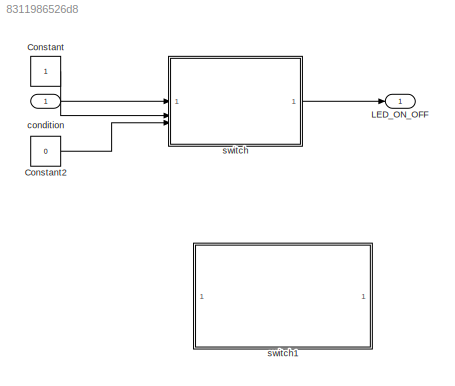
MODEL slx_8311986526d8
KIND model
CONFIG AbsTol = auto
CONFIG EnableMultiTasking = off
CONFIG FixedStep = 0.001
CONFIG MaxStep = auto
CONFIG MinStep = auto
CONFIG RelTol = 1e-3
CONFIG SampleTimeConstraint = Unconstrained
CONFIG SolverName = FixedStepDiscrete
CONFIG StartTime = 0.0
CONFIG StopTime = 20
BLOCK [Constant] Constant
BLOCK [Constant] Constant2
  Value = 0
BLOCK [Outport] LED_ON_OFF
BLOCK [Inport] condition
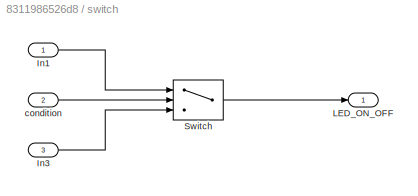
BLOCK [SubSystem] switch
  TreatAsAtomicUnit = on
BLOCK [Inport] switch/In1
BLOCK [Inport] switch/In3
  Port = 3
BLOCK [Outport] switch/LED_ON_OFF
BLOCK [Switch] switch/Switch
  Criteria = u2 > Threshold
  InputSameDT = off
  SaturateOnIntegerOverflow = off
BLOCK [Inport] switch/condition
  Port = 2
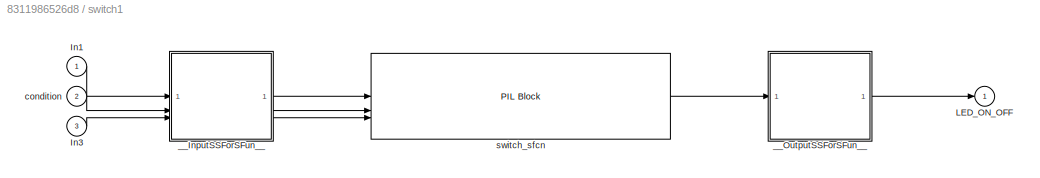
BLOCK [SubSystem] switch1
  Commented = on
  DialogController = pil_create_dialog
  LoadFcn = try\n   if ~strcmp(rtw.pil.getPILVersion, '9.13 (R2022b)_15')\n      set_param(gcb, 'DialogController', '');\n      set_param(gcb, 'DialogControllerArgs', '');\n   end\ncatch e\n      set_param(gcb, 'DialogController', '');\n      set_param(gcb, 'DialogControllerArgs', '');\nend
  Tag = __SL_testing_harness_stub_
BLOCK [Inport] switch1/In1
BLOCK [Inport] switch1/In3
  Port = 3
BLOCK [Outport] switch1/LED_ON_OFF
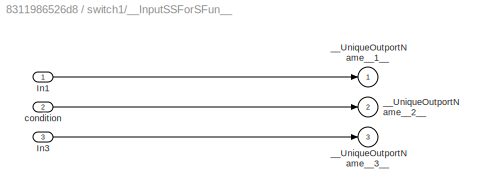
BLOCK [SubSystem] switch1/__InputSSForSFun__
  PermitHierarchicalResolution = ExplicitOnly
BLOCK [Inport] switch1/__InputSSForSFun__/In1
BLOCK [Inport] switch1/__InputSSForSFun__/In3
  Port = 3
BLOCK [Outport] switch1/__InputSSForSFun__/__UniqueOutportName__1__
BLOCK [Outport] switch1/__InputSSForSFun__/__UniqueOutportName__2__
  Port = 2
BLOCK [Outport] switch1/__InputSSForSFun__/__UniqueOutportName__3__
  Port = 3
BLOCK [Inport] switch1/__InputSSForSFun__/condition
  Port = 2
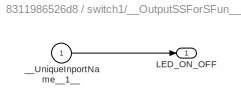
BLOCK [SubSystem] switch1/__OutputSSForSFun__
  PermitHierarchicalResolution = ExplicitOnly
BLOCK [Outport] switch1/__OutputSSForSFun__/LED_ON_OFF
BLOCK [Inport] switch1/__OutputSSForSFun__/__UniqueInportName__1__
BLOCK [Inport] switch1/condition
  Port = 2
BLOCK [Reference] switch1/switch_sfcn  REF=pil_lib/PIL Block
  SourceBlock = pil_lib/PIL Block
  SourceType = XILBlock
LINE Constant2:1 -> switch:3
LINE Constant:1 -> switch:1
LINE condition:1 -> switch:2
LINE switch/In1:1 -> switch/Switch:1
LINE switch/In3:1 -> switch/Switch:3
LINE switch/Switch:1 -> switch/LED_ON_OFF:1
LINE switch/condition:1 -> switch/Switch:2
LINE switch:1 -> LED_ON_OFF:1
